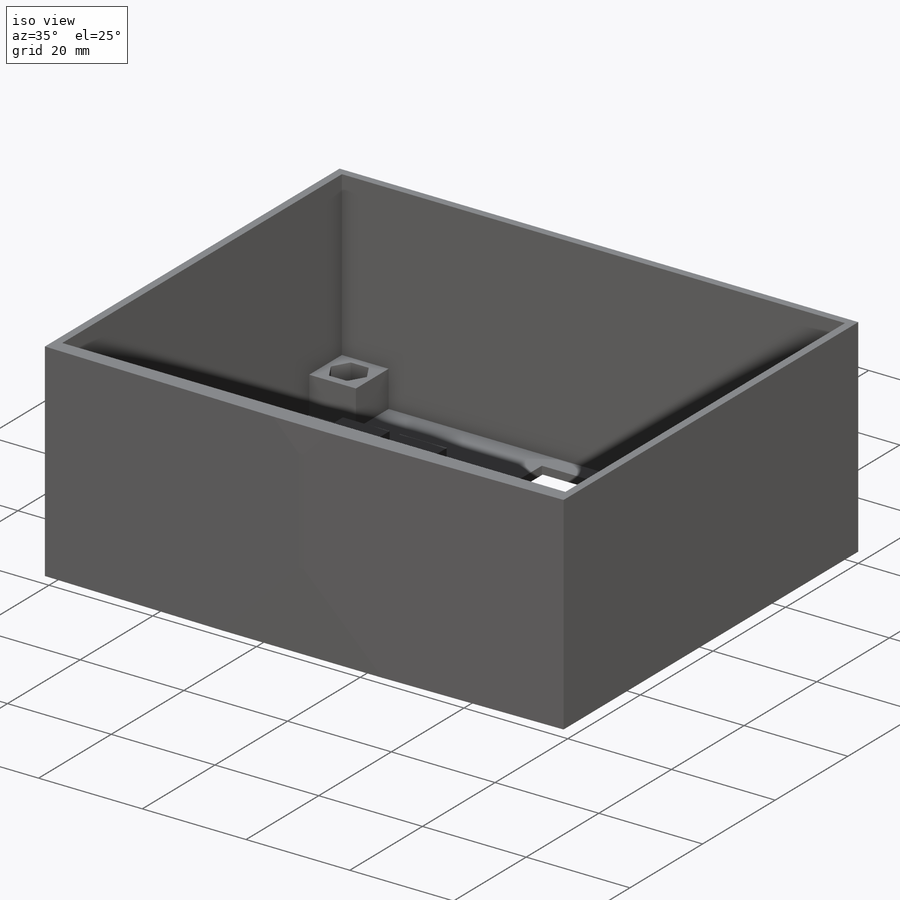
[diagram: iso view]
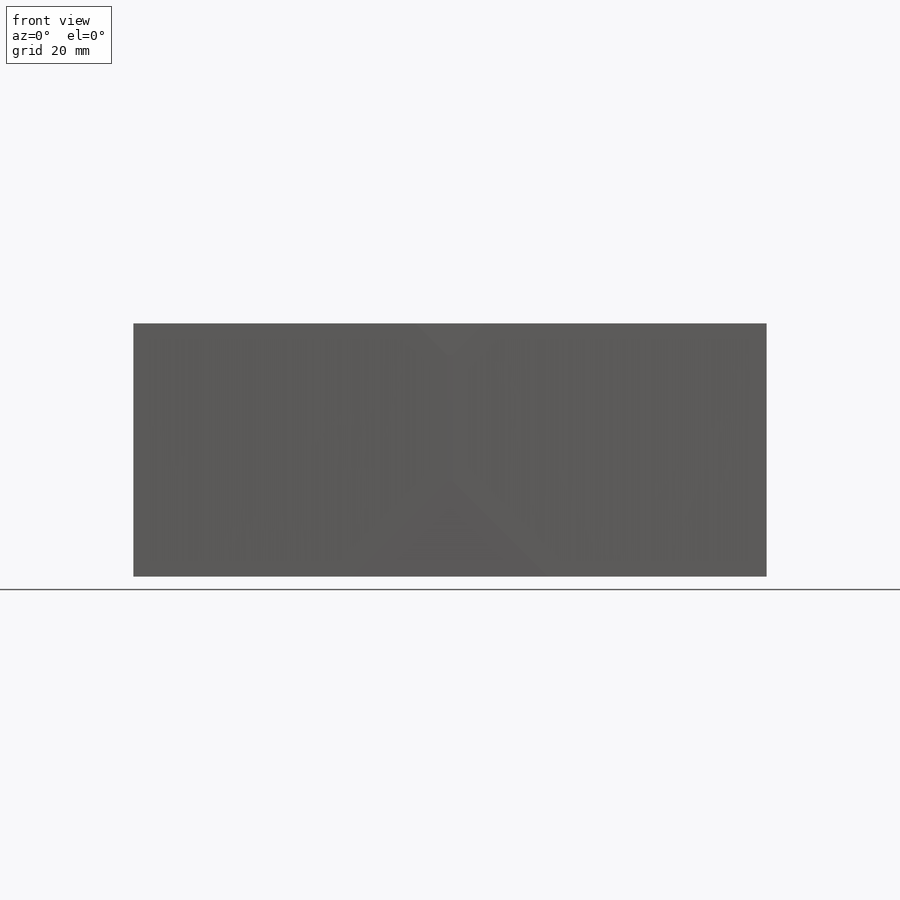
[diagram: front view]
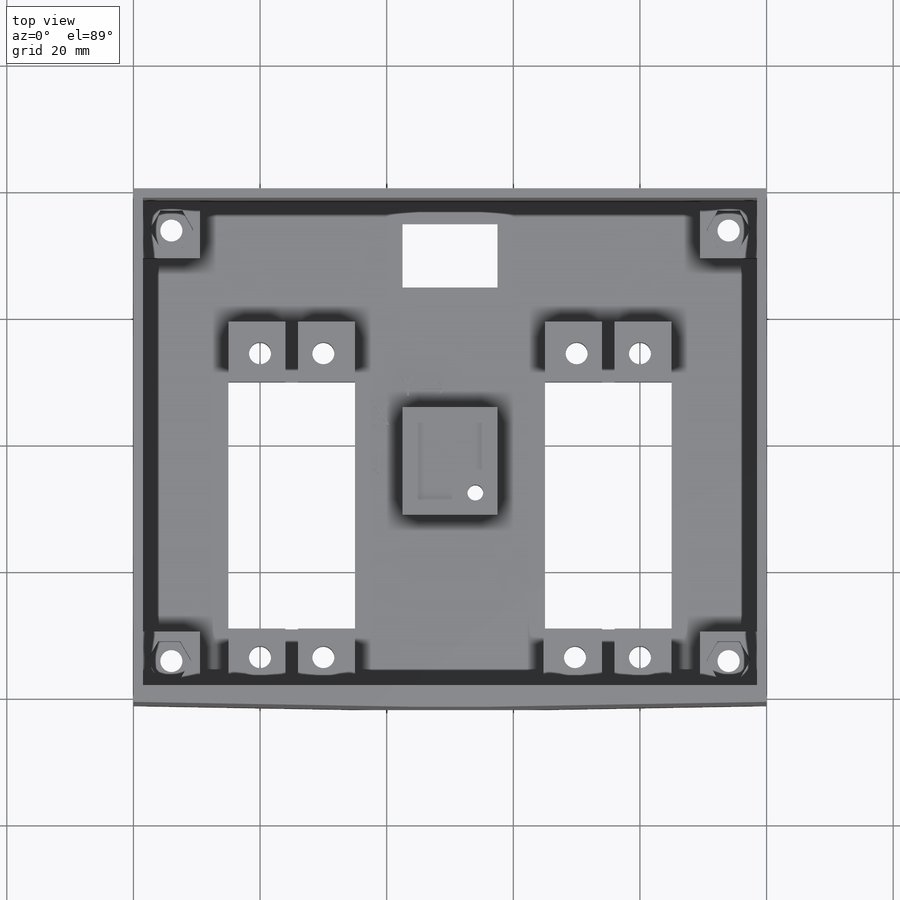
[diagram: top view]
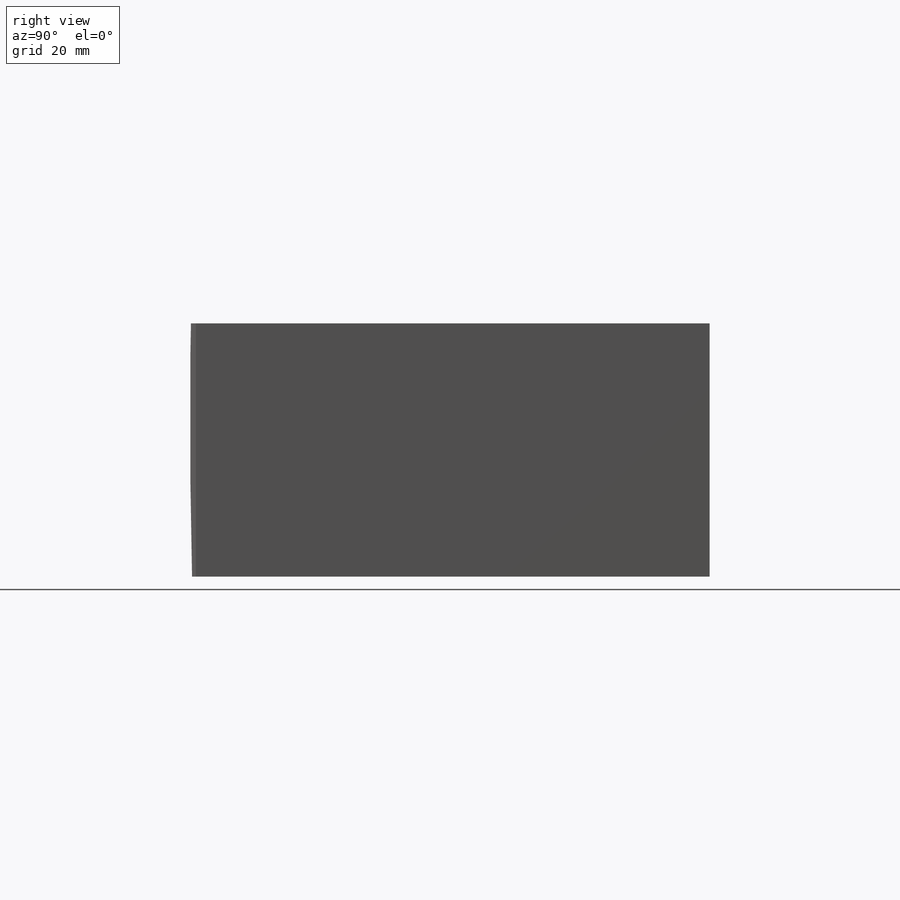
[diagram: right view]
SOLIDWORKS PART (.sldprt)
format: sldprt  version: not decoded by parser v0  size: 625,152 bytes
history: native  units: mm
features: sketch x8, extrude x5, plane x3, cut_extrude x3, material x1, chamfer x1 (+10 scaffold rows collapsed)
feature tree (31):
  scaffold x10  (default folders/planes/origin — collapsed)
  material  "Matériau <non spécifié>"
  plane  "Plan de face"
  plane  "Plan de dessus"
  plane  "Plan de droite"
  sketch  "Esquisse1"  dims[D1=80.0mm D2=100.0mm D3=20.0mm D4=39.0mm D5=20.0mm D6=39.0mm D7=15.0mm D8=15.0mm D9=30.0mm D10=30.0mm D11=15.0mm D12=10.0mm D13=42.5mm D14=5.0mm]
  extrude  "Boss.-Extru.2"  Depth=1.5mm
  sketch  "Esquisse2"  dims[D1=1.5mm D2=1.5mm D3=1.5mm D4=1.5mm]
  extrude  "Boss.-Extru.3"  Depth=38.5mm
  sketch  "Esquisse3"  dims[D1=2.0mm D2=9.0mm D3=9.5mm D4=9.5mm D5=2.0mm D6=9.0mm D7=2.0mm D8=9.0mm D9=9.5mm D10=9.5mm D11=2.0mm D12=9.0mm D13=17.0mm D14=15.0mm D15=27.5mm D16=41.0mm D17=9.0mm D18=9.0mm D19=9.0mm D20=9.0mm D21=9.0mm D22=9.0mm D23=9.0mm D24=9.0mm]
  extrude  "Boss.-Extru.4"  Depth=7mm
  sketch  "Esquisse4"  dims[c1.D1=3.5mm c1.D2=3.5mm c1.D3=3.5mm c1.D4=3.5mm c1.D5=3.5mm c1.D6=3.5mm c1.D7=3.5mm c1.D8=3.5mm c1.D9=3.5mm c1.D10=3.5mm c1.D11=3.5mm c1.D12=3.5mm c1.D13=3.5mm c1.D14=3.5mm c1.D15=3.5mm c1.D16=3.5mm c1.D17=3.5mm c1.D18=3.5mm c1.D19=3.5mm c1.D20=3.5mm c1.D21=3.5mm c1.D22=3.5mm c1.D23=3.5mm c1.D24=3.5mm c1.D25=2.5mm c1.D26=2.5mm c1.D27=2.5mm c1.D28=3.5mm c1.D29=3.5mm c1.D30=3.5mm c1.D31=3.5mm c1.D32=3.5mm c1.D33=3.5mm c1.D34=3.5mm c1.D35=3.5mm c1.D36=3.5mm c1.D37=3.5mm c1.D38=3.5mm c1.D39=3.5mm c2.D9=3.5mm c2.D11=3.5mm c2.D12=3.5mm c3.D9=4.75mm c3.D10=5.0mm c3.D11=4.5mm c3.D12=5.0mm c3.D13=4.5mm c3.D14=5.0mm c3.D15=5.0mm c3.D16=4.5mm c3.D17=4.5mm c3.D18=5.0mm c3.D19=4.5mm c3.D20=4.0mm c3.D21=5.0mm c3.D22=4.0mm c3.D23=4.5mm c3.D24=4.5mm c3.D26=3.5mm c3.D27=3.5mm c3.D28=3.0mm c3.D29=3.0mm c4.D28=6.0mm c4.D29=4.5mm c4.D30=~4.229344mm c5.D29=4.5mm c5.D30=4.5mm c5.D32=4.5mm c5.D33=4.5mm c5.D35=4.5mm c5.D36=4.5mm c5.D38=4.5mm c5.D39=4.5mm c5.D9=4.5mm c5.D11=4.5mm c5.D12=5.0mm]
  cut_extrude  "Enlèv. mat.-Extru.1"  Depth=15mm
  sketch  "Esquisse6"
  extrude  "Boss.-Extru.5"  Depth=0.5mm
  sketch  "Esquisse7"  dims[D1=1.0mm D2=1.0mm D3=1.0mm D4=1.0mm]
  cut_extrude  "Enlèv. mat.-Extru.2"  Depth=1mm
  sketch  "Esquisse8"  dims[D10=6.0mm D1=6.0mm D2=4.85mm D3=4.5mm D4=6.0mm D5=4.5mm D6=4.5mm D7=6.0mm D8=4.5mm D9=4.5mm D11=4.5mm D12=4.5mm]
  cut_extrude  "Enlèv. mat.-Extru.3"  Depth=7mm
  sketch  "Esquisse9"  dims[c1.D1=5.0mm c1.D2=20.0mm c1.D3=47.5mm c1.D4=10.0mm c2.D1=1.0mm c2.D2=49.5mm c2.D3=5.0mm]
  extrude  "Boss.-Extru.6"  Depth=2mm
  chamfer  "Chanfrein1"  Distance=2mm Angle=89deg
decode coverage: 16 of 17 modeling features carry decoded parameters
note: ~ marks probable driven/reference dimensions
note: suppression state not decoded; provenance and decode notes live in map.json
